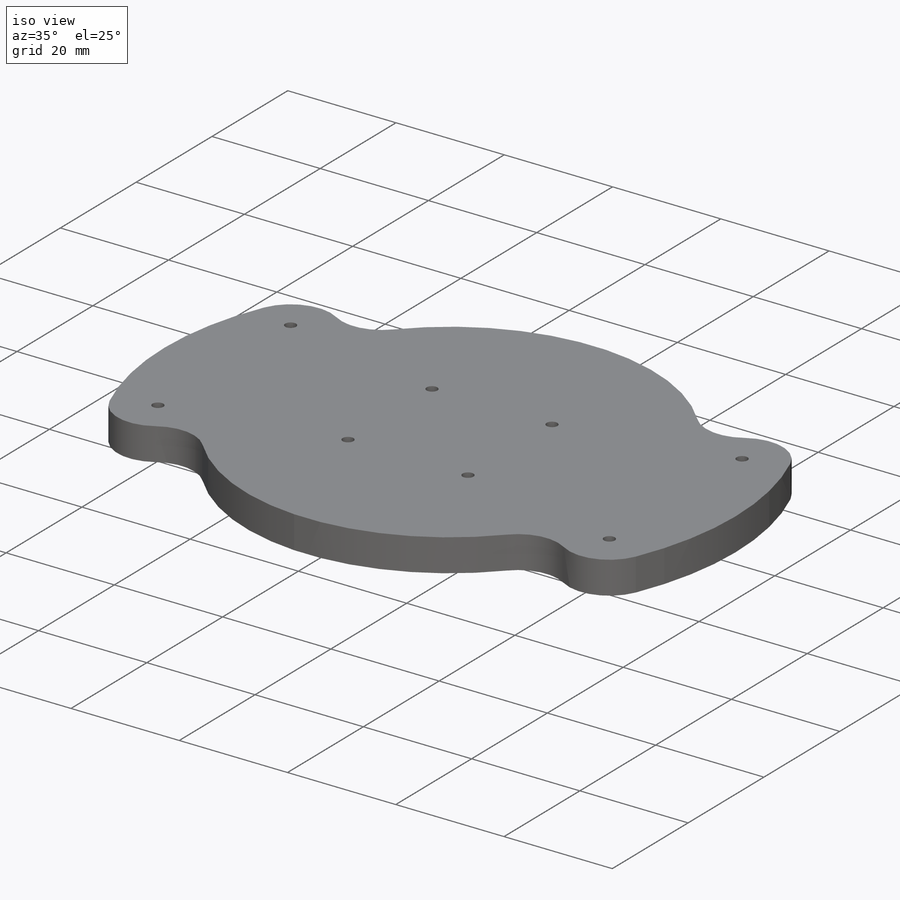
[diagram: iso view]
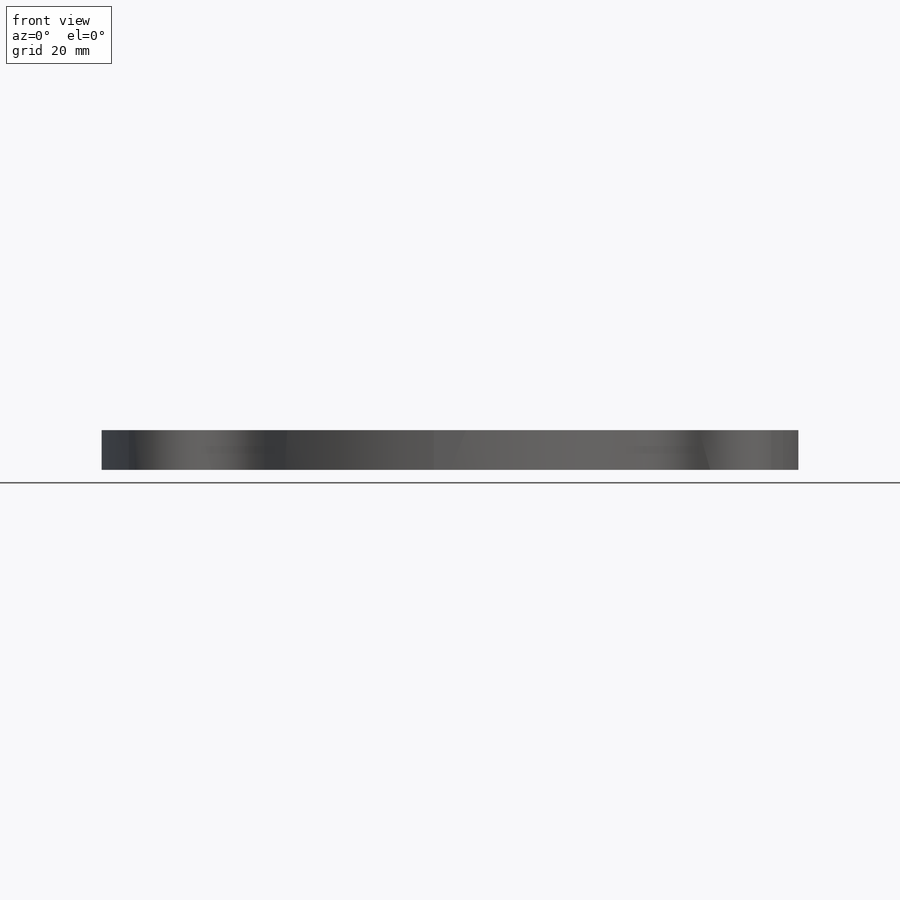
[diagram: front view]
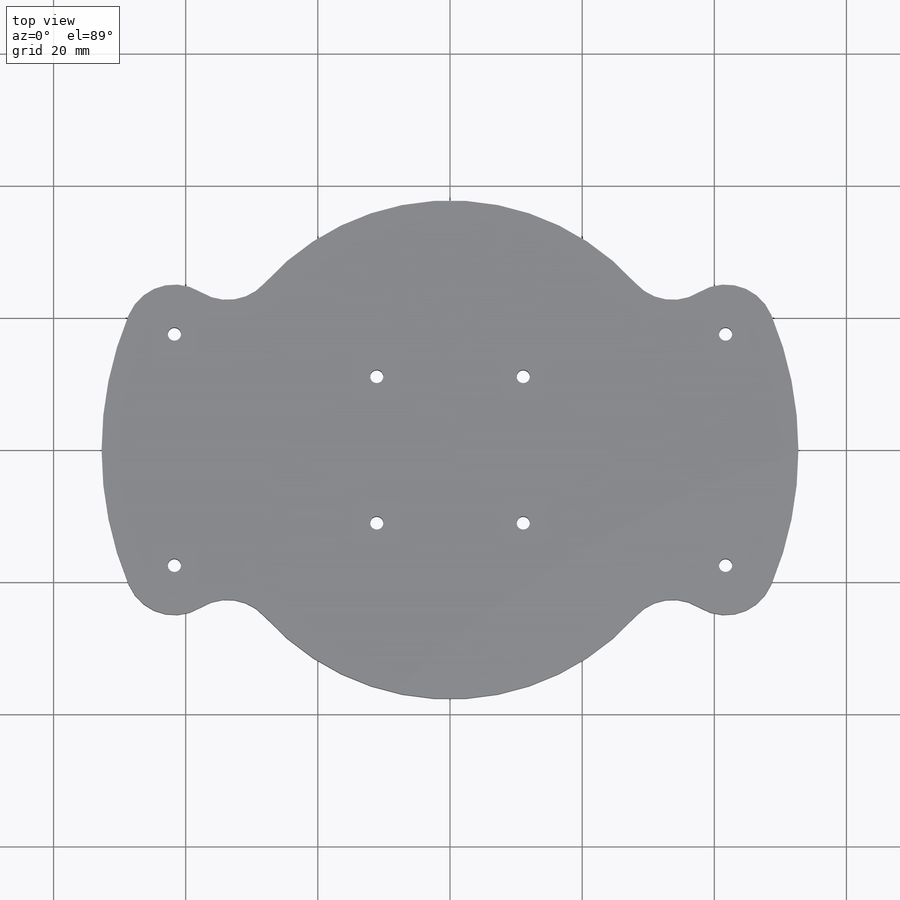
[diagram: top view]
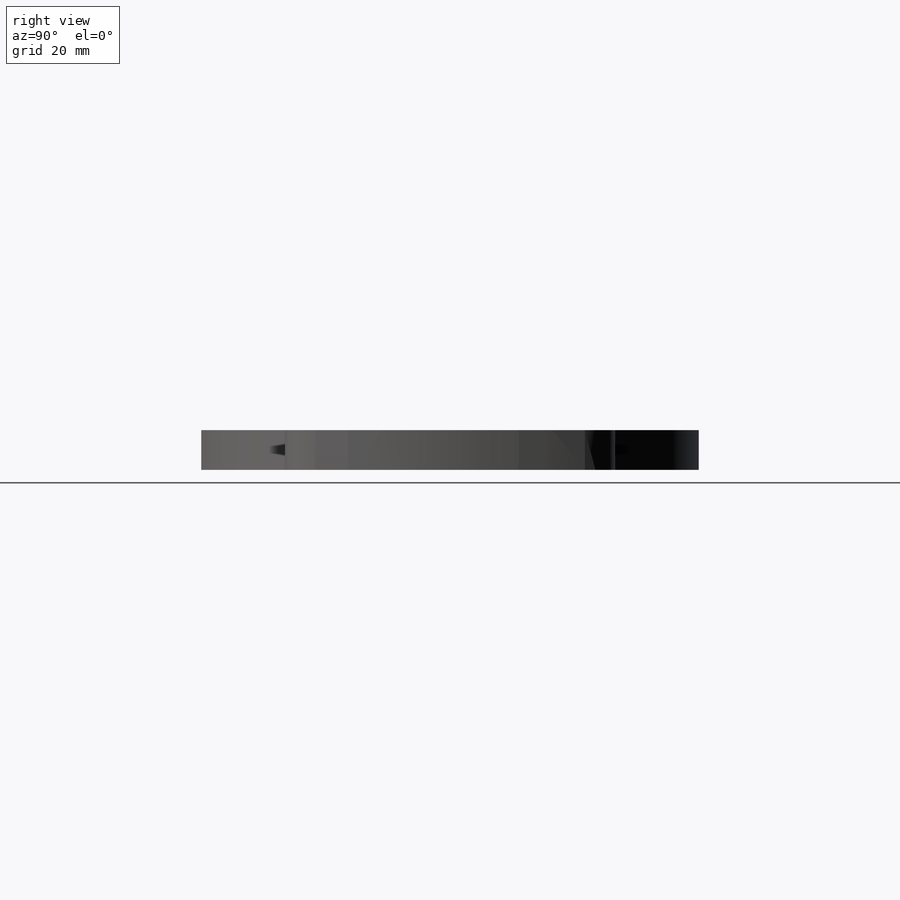
[diagram: right view]
SOLIDWORKS PART (.sldprt)
format: sldprt  version: not decoded by parser v0  size: 209,920 bytes
history: native  units: mm
features: sketch x3, material x1, extrude x1, fillet x1, hole x1 (+13 scaffold rows collapsed)
feature tree (20):
  scaffold x13  (default folders/planes/origin — collapsed)
  material  "Material <not specified>"
  sketch  "Sketch1"  dims[c1.D1=75.45mm c1.D3=2.0mm c1.D6=75.45mm c1.D9=2.0mm c1.D2=15.675mm c1.D4=~30.95461mm c2.D4=45.0deg c2.D6=15.0mm c2.D7=45.225mm c2.D8=35.0mm c2.D10=7.5mm c2.D5=4.0]
  extrude  "Boss-Extrude1"  Depth=6mm
  fillet  "Fillet1"  Radius=7.5mm
  hole  "CSK for M2 Flat Head Machine Screw2"  Diameter=5.5mm Depth=6mm
  sketch  "Sketch5"
  sketch  "Sketch4"  dims[hole-wizard template sketch: 55 standard entries collapsed; hole parameters kept: c17.Thru Hole Depth=6.0mm c17.Near C'Sink Dia.=10.4mm c17.D4=~3.666174mm c17.Near C'Sink Angle=90.0deg]
decode coverage: 5 of 6 modeling features carry decoded parameters
note: ~ marks probable driven/reference dimensions
note: suppression state not decoded; provenance and decode notes live in map.json
